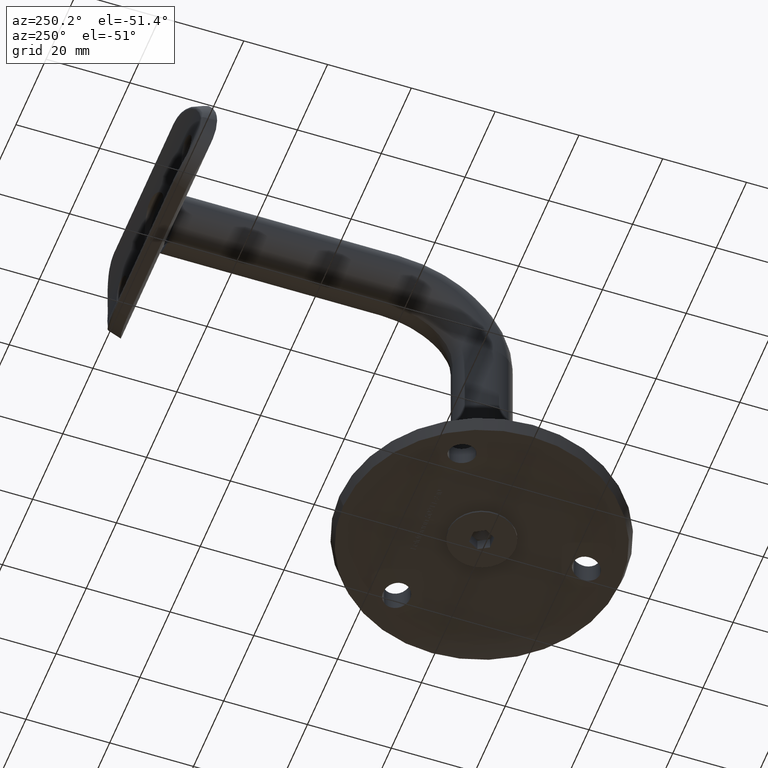
[diagram: clean part render]
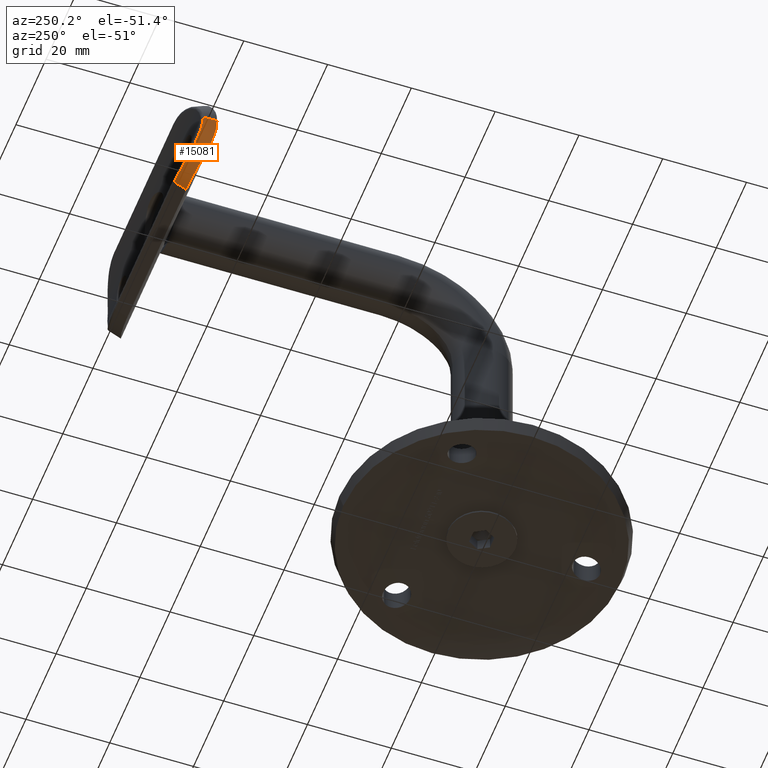
[diagram: same view with one face highlighted and labeled with its STEP entity id]
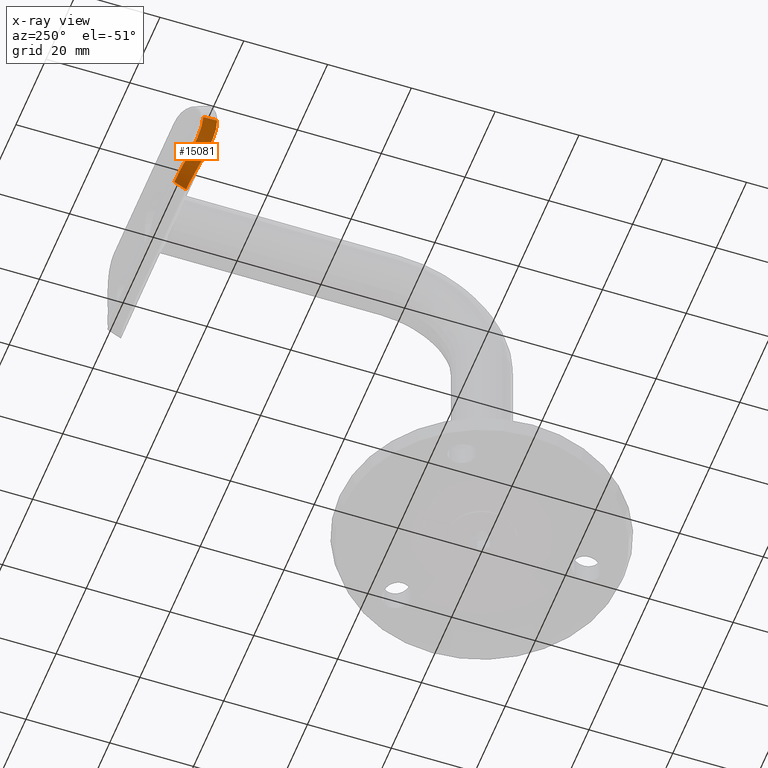
[diagram: x-ray of the same camera — body ghosted, the highlighted face saturated]
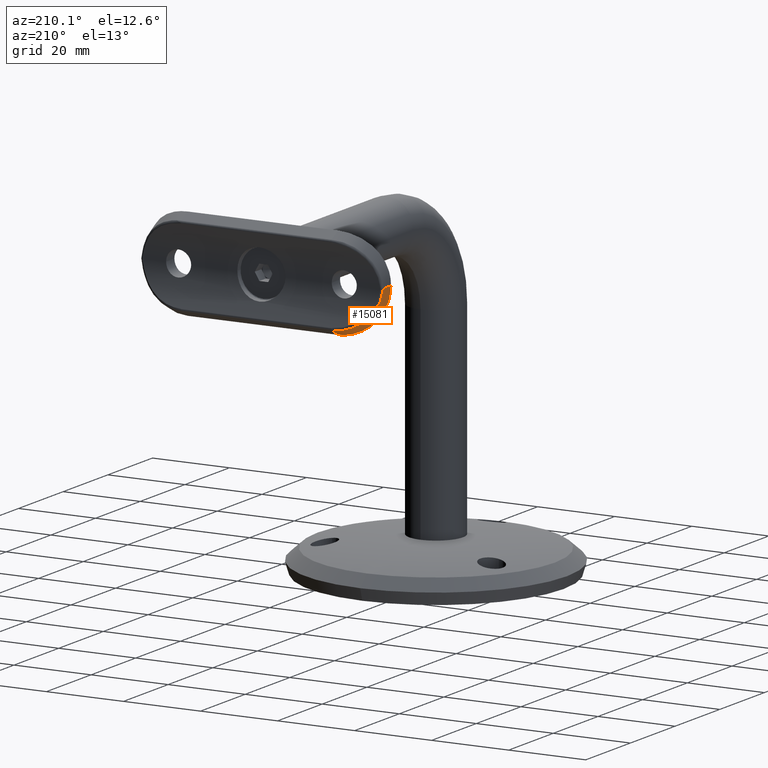
[diagram: same view with one face highlighted and labeled with its STEP entity id]
A machine part, auxiliary view. The second image highlights one B-rep face of the part: STEP entity #15081.
The next image is the same camera in x-ray: the body ghosted, the highlighted face saturated — about 0% of this face is hidden behind the body in this view.
A second angle (auxiliary view) of the same face is appended — the face is thin or edge-on in the first view.
In plain terms, the highlighted cylindrical surface (partial cylindrical patch) has radius 12 mm, axis along (-0, 0.8762, 0.4819).
Its self-contained STEP definition (entity closure, byte-faithful):
#73 = FACE_OUTER_BOUND ( 'NONE', #1821, .T. ) ;
#179 = CARTESIAN_POINT ( 'NONE',  ( 1.613102312184482745, -3.660295573399624303, -31.43708710865749367 ) ) ;
#386 = CARTESIAN_POINT ( 'NONE',  ( 0.7358220946504239190, -0.4485476517704525268, -31.29923357073367285 ) ) ;
#549 = CARTESIAN_POINT ( 'NONE',  ( 10.39441033852603624, 2.159319790259951688, -20.97575775976511636 ) ) ;
#922 = DIRECTION ( 'NONE',  ( -0.8762109800277926297, -0.4819277108433743240, 0.000000000000000000 ) ) ;
#1087 = CARTESIAN_POINT ( 'NONE',  ( -4.451231884678728122E-16, -2.619075602068025699, -31.50000000000000000 ) ) ;
#1673 = CARTESIAN_POINT ( 'NONE',  ( 7.833305283921827566, 1.019266358118397608, -27.28663773652139213 ) ) ;
#1787 = CARTESIAN_POINT ( 'NONE',  ( 8.471561614151752906, 1.269723628537201332, -26.40975643252788885 ) ) ;
#1821 = EDGE_LOOP ( 'NONE', ( #10252, #10850, #12400, #13071 ) ) ;
#1836 = CARTESIAN_POINT ( 'NONE',  ( 9.196144659064110272, 1.577887941172767094, -25.17001518979866859 ) ) ;
#1958 = VERTEX_POINT ( 'NONE', #8658 ) ;
#2431 = CARTESIAN_POINT ( 'NONE',  ( -1.387778780781445676E-14, -3.700000000000009059, -31.50000000000000000 ) ) ;
#2775 = CARTESIAN_POINT ( 'NONE',  ( 6.156121038829930114, -2.936724213265689887, -30.05584034722584263 ) ) ;
#2826 = CARTESIAN_POINT ( 'NONE',  ( 12.00000000000000888, -0.6176534026920420528, -20.31329885972720817 ) ) ;
#3030 = CARTESIAN_POINT ( 'NONE',  ( 5.467565589066903264, 0.2703062758298111490, -29.45920198927893807 ) ) ;
#3577 = DIRECTION ( 'NONE',  ( -0.4819277108433742685, 0.8762109800277927407, -2.169367489357782465E-30 ) ) ;
#3729 = CARTESIAN_POINT ( 'NONE',  ( 3.959980470126887031, -3.386209395477729700, -30.94697538539420734 ) ) ;
#4117 = CARTESIAN_POINT ( 'NONE',  ( 10.86337671054184817, -1.207519595627818632, -24.95273175522527964 ) ) ;
#4290 = CARTESIAN_POINT ( 'NONE',  ( 8.362564540343095487, -2.255537001843989753, -28.43211677885593858 ) ) ;
#4477 = CARTESIAN_POINT ( 'NONE',  ( 3.563487049633597525, -0.1463804021405258615, -30.50564224895477139 ) ) ;
#4675 = B_SPLINE_CURVE_WITH_KNOTS ( 'NONE', 3,
 ( #2431, #11351, #179, #12998, #11409, #3729, #6292, #10450, #2775, #11744, #8711, #9325, #4290, #7997, #9210, #10630, #15694, #6864, #4117, #15810, #13100, #5407, #2826, #9377 ),
 .UNSPECIFIED., .F., .F.,
 ( 4, 2, 2, 2, 2, 2, 2, 2, 2, 2, 2, 4 ),
 ( 1.077696660413038744E-18, 0.002406420888280979414, 0.003609631332421468688, 0.004812841776561957961, 0.007219262664842938243, 0.008422473108983431420, 0.009625683553123926331, 0.01082889399726441951, 0.01203210444140491268, 0.01443852532968590424, 0.01684494621796689406, 0.01925136710624788736 ),
 .UNSPECIFIED. ) ;
#4899 = CYLINDRICAL_SURFACE ( 'NONE', #11421, 12.00000000000000178 ) ;
#4994 = EDGE_CURVE ( 'NONE', #7076, #15328, #14526, .T. ) ;
#5407 = CARTESIAN_POINT ( 'NONE',  ( 11.92848259060794014, -0.6574309275929257623, -21.11410712426871328 ) ) ;
#5446 = EDGE_CURVE ( 'NONE', #7076, #14705, #11940, .T. ) ;
#5556 = CARTESIAN_POINT ( 'NONE',  ( 0.3694255239971085958, -0.4630373677216957917, -31.35580555292284544 ) ) ;
#5661 = CARTESIAN_POINT ( 'NONE',  ( 8.663671254142736089, 1.349547193717797633, -26.10600176303315578 ) ) ;
#5718 = CARTESIAN_POINT ( 'NONE',  ( 4.534825437327045350, 0.04882151512692720768, -30.02213823842947704 ) ) ;
#6138 = CARTESIAN_POINT ( 'NONE',  ( 1.485468239666484891, -6.400785932812541823, -19.50000000000000355 ) ) ;
#6292 = CARTESIAN_POINT ( 'NONE',  ( 4.343585444218851954, -3.321130880666876894, -30.82433790244265381 ) ) ;
#6862 = EDGE_CURVE ( 'NONE', #14705, #1958, #4675, .T. ) ;
#6864 = CARTESIAN_POINT ( 'NONE',  ( 10.51395294504077960, -1.376102020913409163, -25.65610659191669995 ) ) ;
#6900 = DIRECTION ( 'NONE',  ( -0.4819277108433742685, 0.8762109800277927407, -2.169367489357782465E-30 ) ) ;
#7076 = VERTEX_POINT ( 'NONE', #13534 ) ;
#7476 = CARTESIAN_POINT ( 'NONE',  ( 0.000000000000000000, -0.4686549437375175930, -31.39852492656308769 ) ) ;
#7715 = CARTESIAN_POINT ( 'NONE',  ( 10.45505487545769796, 2.191269701761547228, -19.50000000000000355 ) ) ;
#7903 = CARTESIAN_POINT ( 'NONE',  ( 0.000000000000000000, -0.4686549437375175930, -31.39852492656308769 ) ) ;
#7997 = CARTESIAN_POINT ( 'NONE',  ( 8.908510052025789605, -2.053669611251289773, -27.87937364185426503 ) ) ;
#8074 = CARTESIAN_POINT ( 'NONE',  ( 5.764533070701291173, 0.3496055397818050858, -29.25166888921780739 ) ) ;
#8138 = CARTESIAN_POINT ( 'NONE',  ( 4.850982341867963399, 0.1195039370240859877, -29.84545285072242393 ) ) ;
#8235 = CARTESIAN_POINT ( 'NONE',  ( 10.14034840887875788, 2.029866555024383068, -22.41475408195938712 ) ) ;
#8658 = CARTESIAN_POINT ( 'NONE',  ( 12.00000000000001066, -0.6176534026920421638, -19.50000000000000355 ) ) ;
#8711 = CARTESIAN_POINT ( 'NONE',  ( 7.465386431756481755, -2.556697687672642161, -29.18815436188814161 ) ) ;
#8873 = CARTESIAN_POINT ( 'NONE',  ( -8.893043612185819167E-16, -1.540438768114506862, -31.46612718541925346 ) ) ;
#8928 = EDGE_CURVE ( 'NONE', #1958, #15328, #13219, .T. ) ;
#9210 = CARTESIAN_POINT ( 'NONE',  ( 9.166149050193574510, -1.952978448765995356, -27.58848537800125555 ) ) ;
#9325 = CARTESIAN_POINT ( 'NONE',  ( 8.074259893479311501, -2.356718930519078548, -28.69397140321250816 ) ) ;
#9353 = CARTESIAN_POINT ( 'NONE',  ( 2.885545255493494388, -0.2540987631411316117, -30.76614118052227909 ) ) ;
#9377 = CARTESIAN_POINT ( 'NONE',  ( 12.00000000000001066, -0.6176534026920421638, -19.50000000000000355 ) ) ;
#9402 = CARTESIAN_POINT ( 'NONE',  ( 1.823709883739429216, -0.3711974704667913572, -31.06997820427040580 ) ) ;
#9451 = CARTESIAN_POINT ( 'NONE',  ( 10.45505487545769974, 2.191269701761547672, -20.24369463097171007 ) ) ;
#9511 = CARTESIAN_POINT ( 'NONE',  ( 6.614694112078466581, 0.5932317887515706767, -28.59215257876478589 ) ) ;
#10252 = ORIENTED_EDGE ( 'NONE', *, *, #5446, .F. ) ;
#10450 = CARTESIAN_POINT ( 'NONE',  ( 5.455945028680448061, -3.106646016184960502, -30.40527435075044593 ) ) ;
#10630 = CARTESIAN_POINT ( 'NONE',  ( 9.651496139240748562, -1.754897554413265892, -26.97737785628718399 ) ) ;
#10758 = CARTESIAN_POINT ( 'NONE',  ( 10.45505487545769796, 2.191269701761547228, -19.50000000000000355 ) ) ;
#10850 = ORIENTED_EDGE ( 'NONE', *, *, #4994, .T. ) ;
#11351 = CARTESIAN_POINT ( 'NONE',  ( 0.8125589719993474569, -3.699999999999994849, -31.50000000000000000 ) ) ;
#11409 = CARTESIAN_POINT ( 'NONE',  ( 3.185422266228743915, -3.498506488204462972, -31.15346151089249105 ) ) ;
#11421 = AXIS2_PLACEMENT_3D ( 'NONE', #6138, #3577, #922 ) ;
#11515 = CARTESIAN_POINT ( 'NONE',  ( -1.387778780781445676E-14, -3.700000000000009059, -31.50000000000000000 ) ) ;
#11744 = CARTESIAN_POINT ( 'NONE',  ( 7.144447545478610273, -2.655485527817210922, -29.42030368926517880 ) ) ;
#11940 =( BOUNDED_CURVE ( )  B_SPLINE_CURVE ( 3, ( #7476, #8873, #1087, #11515 ),
 .UNSPECIFIED., .F., .F. ) 
 B_SPLINE_CURVE_WITH_KNOTS ( ( 4, 4 ),
 ( 1.440656393547518066, 1.570796326794896558 ),
 .UNSPECIFIED. ) 
 CURVE ( )  GEOMETRIC_REPRESENTATION_ITEM ( )  RATIONAL_B_SPLINE_CURVE ( ( 1.000000000000000000, 0.9985891310666824561, 0.9985891310666824561, 1.000000000000000000 ) ) 
 REPRESENTATION_ITEM ( '' )  );
#12008 = CARTESIAN_POINT ( 'NONE',  ( 12.00000000000001066, -0.6176534026920421638, -19.50000000000000355 ) ) ;
#12152 = CARTESIAN_POINT ( 'NONE',  ( 9.960288091199409166, 1.940309669445887231, -23.12431856137339281 ) ) ;
#12271 = CARTESIAN_POINT ( 'NONE',  ( -1.387778780781445676E-14, -3.700000000000009059, -31.50000000000000000 ) ) ;
#12392 = VECTOR ( 'NONE', #6900, 1000.000000000000000 ) ;
#12400 = ORIENTED_EDGE ( 'NONE', *, *, #8928, .F. ) ;
#12998 = CARTESIAN_POINT ( 'NONE',  ( 2.794747767780324299, -3.545827601457943512, -31.23757162576537993 ) ) ;
#13071 = ORIENTED_EDGE ( 'NONE', *, *, #6862, .F. ) ;
#13100 = CARTESIAN_POINT ( 'NONE',  ( 11.64449887647195503, -0.8100347474686148130, -22.69149219421942831 ) ) ;
#13219 = LINE ( 'NONE', #12008, #12392 ) ;
#13294 = CARTESIAN_POINT ( 'NONE',  ( 9.854190850945018454, 1.888249747847290383, -23.47806087955932952 ) ) ;
#13412 = CARTESIAN_POINT ( 'NONE',  ( 7.131093571847389789, 0.7641680875062454303, -28.10124151802545001 ) ) ;
#13534 = CARTESIAN_POINT ( 'NONE',  ( 0.000000000000000000, -0.4686549437375175930, -31.39852492656308769 ) ) ;
#14526 = B_SPLINE_CURVE_WITH_KNOTS ( 'NONE', 3,
 ( #7903, #5556, #386, #15937, #9402, #9353, #4477, #5718, #8138, #3030, #8074, #9511, #13412, #1673, #15882, #1787, #5661, #1836, #14654, #13294, #12152, #8235, #14701, #549, #9451, #10758 ),
 .UNSPECIFIED., .F., .F.,
 ( 4, 2, 2, 2, 2, 2, 2, 2, 2, 2, 2, 2, 4 ),
 ( 0.000000000000000000, 0.001112496874376514696, 0.002224993748753027224, 0.004449987497506049244, 0.005562484371882560688, 0.006674981246259072132, 0.008899974995012098489, 0.01001247186938860646, 0.01112496874376511617, 0.01334996249251813386, 0.01446245936689463836, 0.01557495624127114113, 0.01779994999002413800 ),
 .UNSPECIFIED. ) ;
#14654 = CARTESIAN_POINT ( 'NONE',  ( 9.493047847731194366, 1.715295632416800053, -24.51326570578500252 ) ) ;
#14701 = CARTESIAN_POINT ( 'NONE',  ( 10.21500871849436010, 2.067696369064202955, -22.05711163707681521 ) ) ;
#14705 = VERTEX_POINT ( 'NONE', #12271 ) ;
#15081 = ADVANCED_FACE ( 'NONE', ( #73 ), #4899, .T. ) ;
#15328 = VERTEX_POINT ( 'NONE', #7715 ) ;
#15694 = CARTESIAN_POINT ( 'NONE',  ( 9.880202087646560827, -1.657055889912178115, -26.65553979867361534 ) ) ;
#15810 = CARTESIAN_POINT ( 'NONE',  ( 11.42861343239432692, -0.9245719279827817605, -23.47385143687693088 ) ) ;
#15882 = CARTESIAN_POINT ( 'NONE',  ( 8.056363116155676352, 1.104545384783374606, -27.00031777044233650 ) ) ;
#15937 = CARTESIAN_POINT ( 'NONE',  ( 1.462267733718372709, -0.4027156887386668660, -31.15653743707210310 ) ) ;